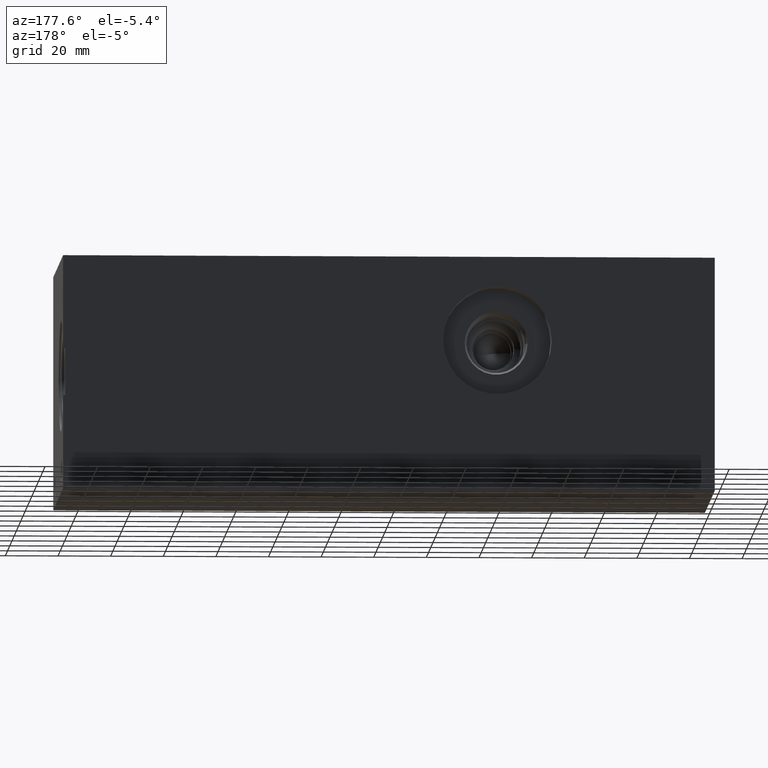
[diagram: clean part render]
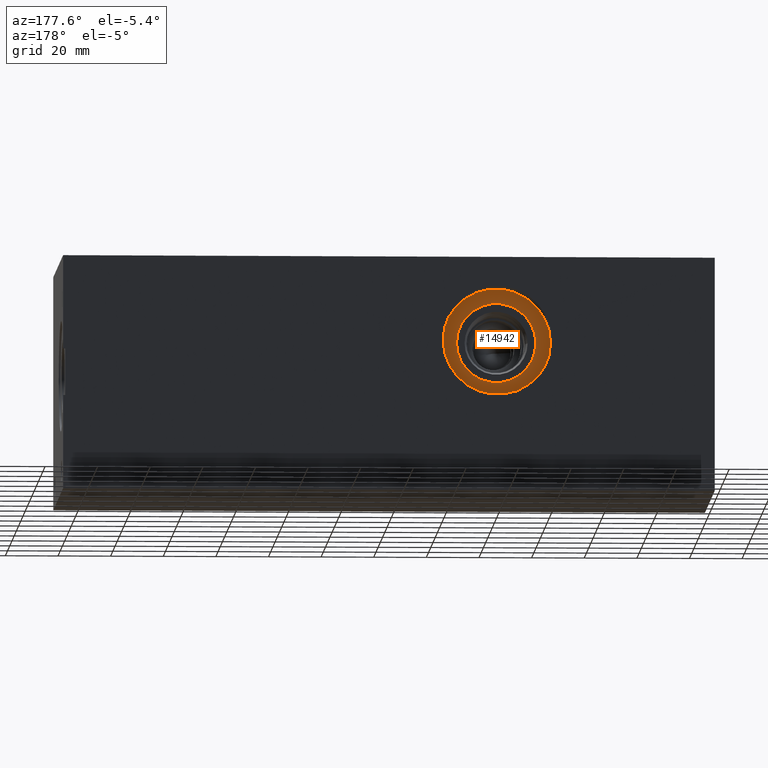
[diagram: same view with one face highlighted and labeled with its STEP entity id]
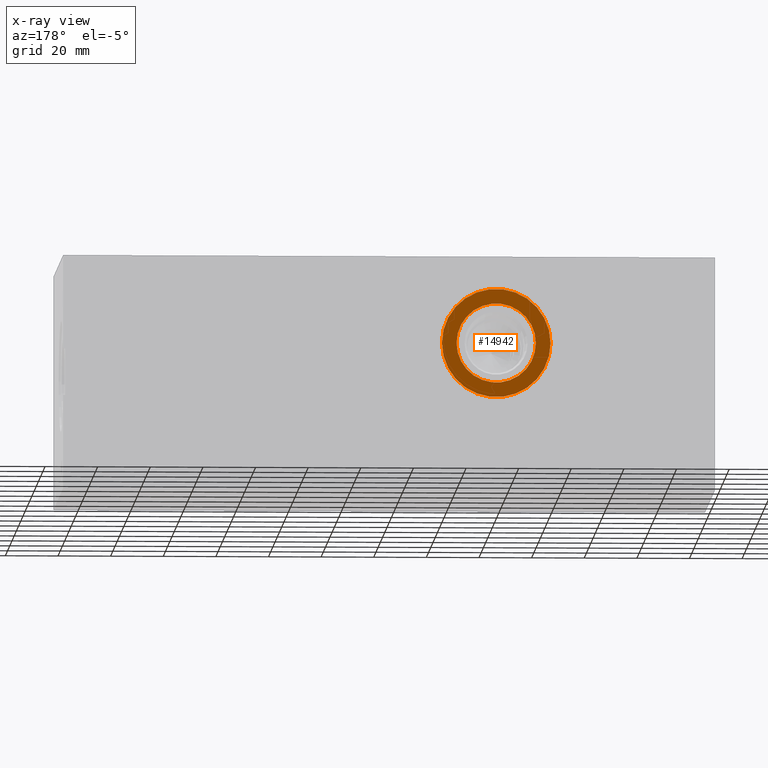
[diagram: x-ray of the same camera — body ghosted, the highlighted face saturated]
A machine part, auxiliary view. The second image highlights one B-rep face of the part: STEP entity #14942.
The next image is the same camera in x-ray: the body ghosted, the highlighted face saturated — about 0% of this face is hidden behind the body in this view.
In plain terms, the highlighted planar face has unit normal (0, -1, 0).
Its self-contained STEP definition (entity closure, byte-faithful):
#216=CIRCLE('',#15549,20.6375);
#217=CIRCLE('',#15550,20.6375);
#218=CIRCLE('',#15552,15.08);
#219=CIRCLE('',#15553,15.08);
#637=FACE_BOUND('',#2753,.T.);
#1910=FACE_OUTER_BOUND('',#2752,.T.);
#2752=EDGE_LOOP('',(#12298,#12299));
#2753=EDGE_LOOP('',(#12300,#12301));
#6691=VERTEX_POINT('',#25304);
#6692=VERTEX_POINT('',#25306);
#6693=VERTEX_POINT('',#25310);
#6694=VERTEX_POINT('',#25311);
#8663=EDGE_CURVE('',#6691,#6692,#216,.T.);
#8664=EDGE_CURVE('',#6692,#6691,#217,.T.);
#8665=EDGE_CURVE('',#6693,#6694,#218,.T.);
#8666=EDGE_CURVE('',#6694,#6693,#219,.T.);
#12298=ORIENTED_EDGE('',*,*,#8664,.F.);
#12299=ORIENTED_EDGE('',*,*,#8663,.F.);
#12300=ORIENTED_EDGE('',*,*,#8665,.T.);
#12301=ORIENTED_EDGE('',*,*,#8666,.T.);
#13792=PLANE('',#15551);
#14942=ADVANCED_FACE('',(#1910,#637),#13792,.F.);
#15549=AXIS2_PLACEMENT_3D('',#25307,#17990,#17991);
#15550=AXIS2_PLACEMENT_3D('',#25308,#17992,#17993);
#15551=AXIS2_PLACEMENT_3D('',#25309,#17994,#17995);
#15552=AXIS2_PLACEMENT_3D('',#25312,#17996,#17997);
#15553=AXIS2_PLACEMENT_3D('',#25313,#17998,#17999);
#17990=DIRECTION('center_axis',(0.,-1.,0.));
#17991=DIRECTION('ref_axis',(1.,0.,0.));
#17992=DIRECTION('center_axis',(0.,-1.,0.));
#17993=DIRECTION('ref_axis',(1.,0.,0.));
#17994=DIRECTION('center_axis',(0.,-1.,0.));
#17995=DIRECTION('ref_axis',(0.,0.,-1.));
#17996=DIRECTION('center_axis',(0.,-1.,0.));
#17997=DIRECTION('ref_axis',(1.,0.,0.));
#17998=DIRECTION('center_axis',(0.,-1.,0.));
#17999=DIRECTION('ref_axis',(1.,0.,0.));
#25304=CARTESIAN_POINT('',(61.9125,76.9874,57.15));
#25306=CARTESIAN_POINT('',(103.1875,76.9874,57.15));
#25307=CARTESIAN_POINT('Origin',(82.55,76.9874,57.15));
#25308=CARTESIAN_POINT('Origin',(82.55,76.9874,57.15));
#25309=CARTESIAN_POINT('Origin',(97.63,76.9874,57.15));
#25310=CARTESIAN_POINT('',(97.63,76.9874,57.15));
#25311=CARTESIAN_POINT('',(67.47,76.9874,57.15));
#25312=CARTESIAN_POINT('Origin',(82.55,76.9874,57.15));
#25313=CARTESIAN_POINT('Origin',(82.55,76.9874,57.15));